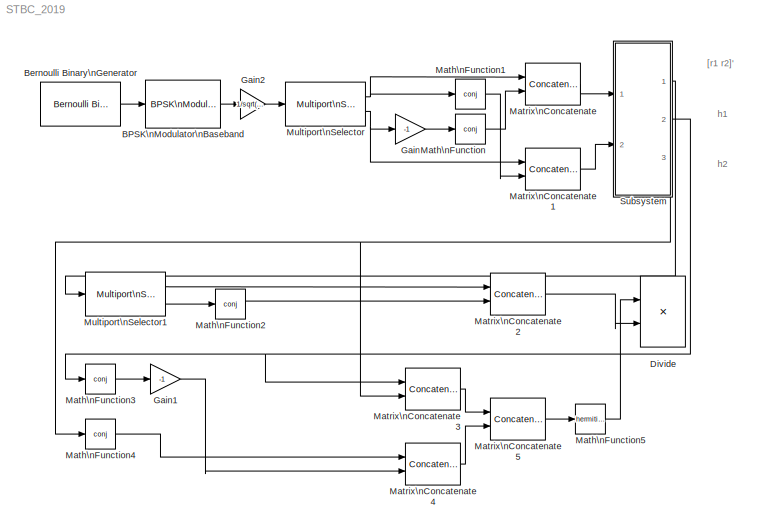
MODEL STBC_2019
KIND model
BLOCK [Reference] BPSK\nModulator\nBaseband  REF=commdigbbndpm3/BPSK\nModulator\nBaseband
  DialogController = commDDGCreate
  DialogControllerArgs = DataTag0
  FunctionWithSeparateData = off
  GeneratePreprocessorConditionals = off
  Ph = 0
  Ports = [1, 1]
  RTWMemSecDataConstants = Inherit from model
  RTWMemSecDataInternal = Inherit from model
  RTWMemSecDataParameters = Inherit from model
  RTWMemSecFuncExecute = Inherit from model
  RTWMemSecFuncInitTerm = Inherit from model
  SID = 2
  ShowPortLabels = FromPortIcon
  SourceBlock = commdigbbndpm3/BPSK\nModulator\nBaseband
  SourceType = BPSK Modulator Baseband
  SystemSampleTime = -1
  outDtype = double
  outFracLen = 15
  outFracLenMode = Best precision
  outUDDataType = sfix(16)
  outWordLen = 16
BLOCK [Reference] Bernoulli Binary\nGenerator  REF=commrandsrc2/Bernoulli Binary\nGenerator
  DialogController = commDDGCreate
  DialogControllerArgs = DataTag1
  FunctionWithSeparateData = off
  GeneratePreprocessorConditionals = off
  P = 0.5
  Ports = [0, 1]
  RTWMemSecDataConstants = Inherit from model
  RTWMemSecDataInternal = Inherit from model
  RTWMemSecDataParameters = Inherit from model
  RTWMemSecFuncExecute = Inherit from model
  RTWMemSecFuncInitTerm = Inherit from model
  SID = 1
  ShowPortLabels = FromPortIcon
  SourceBlock = commrandsrc2/Bernoulli Binary\nGenerator
  SourceType = Bernoulli Binary Generator
  SystemSampleTime = -1
  Ts = 1e-6
  frameBased = on
  orient = off
  outDataType = double
  sampPerFrame = 2
  seed = 61
BLOCK [Product] Divide
  InputSameDT = off
  Inputs = **
  Multiplication = Matrix(*)
  OutDataTypeStr = Inherit: Inherit via internal rule
  Ports = [2, 1]
  RndMeth = Floor
  SID = 33
  SaturateOnIntegerOverflow = off
BLOCK [Gain] Gain
  Gain = -1
  OutDataTypeStr = Inherit: Inherit via internal rule
  ParamDataTypeStr = Inherit: Inherit via internal rule
  SID = 5
  SaturateOnIntegerOverflow = off
BLOCK [Gain] Gain1
  Gain = -1
  OutDataTypeStr = Inherit: Inherit via internal rule
  ParamDataTypeStr = Inherit: Inherit via internal rule
  SID = 27
  SaturateOnIntegerOverflow = off
BLOCK [Gain] Gain2
  Gain = 1/sqrt(2)
  OutDataTypeStr = Inherit: Inherit via internal rule
  ParamDataTypeStr = Inherit: Inherit via internal rule
  SID = 37
  SaturateOnIntegerOverflow = off
BLOCK [Math] Math\nFunction
  Operator = conj
  Ports = [1, 1]
  SID = 4
BLOCK [Math] Math\nFunction1
  Operator = conj
  Ports = [1, 1]
  SID = 6
BLOCK [Math] Math\nFunction2
  Operator = conj
  Ports = [1, 1]
  SID = 23
BLOCK [Math] Math\nFunction3
  Operator = conj
  Ports = [1, 1]
  SID = 25
BLOCK [Math] Math\nFunction4
  Operator = conj
  Ports = [1, 1]
  SID = 26
BLOCK [Math] Math\nFunction5
  Operator = hermitian
  Ports = [1, 1]
  SID = 32
BLOCK [Concatenate] Matrix\nConcatenate
  Mode = Multidimensional array
  Ports = [2, 1]
  SID = 7
BLOCK [Concatenate] Matrix\nConcatenate1
  Mode = Multidimensional array
  Ports = [2, 1]
  SID = 9
BLOCK [Concatenate] Matrix\nConcatenate2
  Mode = Multidimensional array
  Ports = [2, 1]
  SID = 24
BLOCK [Concatenate] Matrix\nConcatenate3
  ConcatenateDimension = 2
  Mode = Multidimensional array
  Ports = [2, 1]
  SID = 28
BLOCK [Concatenate] Matrix\nConcatenate4
  ConcatenateDimension = 2
  Mode = Multidimensional array
  Ports = [2, 1]
  SID = 29
BLOCK [Concatenate] Matrix\nConcatenate5
  Mode = Multidimensional array
  Ports = [2, 1]
  SID = 31
BLOCK [Reference] Multiport\nSelector  REF=dspindex/Multiport\nSelector
  Ports = [1, 2]
  SID = 3
  SourceBlock = dspindex/Multiport\nSelector
  SourceType = Multiport Selector
  idxCellArray = {1,2}
  idxErrMode = Clip Index
  rowsOrCols = Rows
BLOCK [Reference] Multiport\nSelector1  REF=dspindex/Multiport\nSelector
  Ports = [1, 2]
  SID = 22
  SourceBlock = dspindex/Multiport\nSelector
  SourceType = Multiport Selector
  idxCellArray = {1,2}
  idxErrMode = Clip Index
  rowsOrCols = Rows
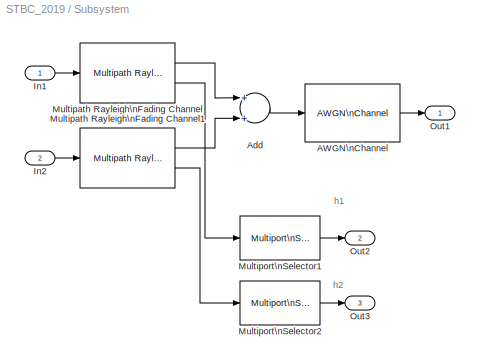
BLOCK [SubSystem] Subsystem
  FunctionWithSeparateData = off
  MaskHideContents = off
  MinAlgLoopOccurrences = off
  Opaque = off
  Ports = [2, 3]
  PropExecContextOutsideSubsystem = off
  RTWSystemCode = Auto
  RequestExecContextInheritance = off
  SID = 16
BLOCK [Reference] Subsystem/AWGN\nChannel  REF=commchan3/AWGN\nChannel
  EbNodB = 10
  EsNodB = 10
  FunctionWithSeparateData = off
  GeneratePreprocessorConditionals = off
  InputProcessing = Columns as channels (frame based)
  Ports = [1, 1]
  Ps = 1
  RTWMemSecDataConstants = Inherit from model
  RTWMemSecDataInternal = Inherit from model
  RTWMemSecDataParameters = Inherit from model
  RTWMemSecFuncExecute = Inherit from model
  RTWMemSecFuncInitTerm = Inherit from model
  SID = 13
  SNRdB = 10
  ShowPortLabels = FromPortIcon
  SourceBlock = commchan3/AWGN\nChannel
  SourceType = AWGN Channel
  SystemSampleTime = -1
  Tsym = 1e-6
  UserData = DataTag2
  UserDataPersistent = on
  bitsPerSym = 1
  noiseMode = Signal to noise ratio  (Eb/No)
  seed = 67
  variance = 1
BLOCK [Sum] Subsystem/Add
  InputSameDT = off
  OutDataTypeStr = Inherit: Inherit via internal rule
  Ports = [2, 1]
  SID = 12
  SaturateOnIntegerOverflow = off
BLOCK [Inport] Subsystem/In1
  IconDisplay = Port number
  SID = 17
BLOCK [Inport] Subsystem/In2
  IconDisplay = Port number
  Port = 2
  SID = 19
BLOCK [Reference] Subsystem/Multipath Rayleigh\nFading Channel  REF=commchan3/Multipath Rayleigh\nFading Channel
  FunctionWithSeparateData = off
  GeneratePreprocessorConditionals = off
  Ports = [1, 2]
  RTWMemSecDataConstants = Inherit from model
  RTWMemSecDataInternal = Inherit from model
  RTWMemSecDataParameters = Inherit from model
  RTWMemSecFuncExecute = Inherit from model
  RTWMemSecFuncInitTerm = Inherit from model
  SID = 10
  ShowPortLabels = FromPortIcon
  SourceBlock = commchan3/Multipath Rayleigh\nFading Channel
  SourceType = Multipath Rayleigh Fading Channel
  SystemSampleTime = -1
  avgPathGaindB = 0
  centerFreqGaussian1 = 0.0
  centerFreqGaussian2 = 0.0
  coeffBell = 9
  coeffRounded = [1 -1.72 0.785]
  dopplerSpectrum = doppler.jakes
  enableProbe = 0
  freqMinMaxAJakes = [0 1]
  freqMinMaxRJakes = [0 1]
  gainGaussian1 = 0.5
  gainGaussian2 = 0.5
  maxDopplerShift = 40
  normalizePathGains = on
  openVisAtStart = off
  outDelay = off
  outPathGains = on
  pathDelays = 0
  seed = 73
  sigmaGaussian = 1/sqrt(2)
  sigmaGaussian1 = 1/sqrt(2)
  sigmaGaussian2 = 1/sqrt(2)
  spectrumType = Jakes
BLOCK [Reference] Subsystem/Multipath Rayleigh\nFading Channel1  REF=commchan3/Multipath Rayleigh\nFading Channel
  FunctionWithSeparateData = off
  GeneratePreprocessorConditionals = off
  Ports = [1, 2]
  RTWMemSecDataConstants = Inherit from model
  RTWMemSecDataInternal = Inherit from model
  RTWMemSecDataParameters = Inherit from model
  RTWMemSecFuncExecute = Inherit from model
  RTWMemSecFuncInitTerm = Inherit from model
  SID = 11
  ShowPortLabels = FromPortIcon
  SourceBlock = commchan3/Multipath Rayleigh\nFading Channel
  SourceType = Multipath Rayleigh Fading Channel
  SystemSampleTime = -1
  avgPathGaindB = 0
  centerFreqGaussian1 = 0.0
  centerFreqGaussian2 = 0.0
  coeffBell = 9
  coeffRounded = [1 -1.72 0.785]
  dopplerSpectrum = doppler.jakes
  enableProbe = 0
  freqMinMaxAJakes = [0 1]
  freqMinMaxRJakes = [0 1]
  gainGaussian1 = 0.5
  gainGaussian2 = 0.5
  maxDopplerShift = 40
  normalizePathGains = on
  openVisAtStart = off
  outDelay = off
  outPathGains = on
  pathDelays = 0
  seed = 731
  sigmaGaussian = 1/sqrt(2)
  sigmaGaussian1 = 1/sqrt(2)
  sigmaGaussian2 = 1/sqrt(2)
  spectrumType = Jakes
BLOCK [Reference] Subsystem/Multiport\nSelector1  REF=dspindex/Multiport\nSelector
  Ports = [1, 1]
  SID = 14
  SourceBlock = dspindex/Multiport\nSelector
  SourceType = Multiport Selector
  idxCellArray = {1}
  idxErrMode = Clip Index
  rowsOrCols = Rows
BLOCK [Reference] Subsystem/Multiport\nSelector2  REF=dspindex/Multiport\nSelector
  Ports = [1, 1]
  SID = 15
  SourceBlock = dspindex/Multiport\nSelector
  SourceType = Multiport Selector
  idxCellArray = {1}
  idxErrMode = Clip Index
  rowsOrCols = Rows
BLOCK [Outport] Subsystem/Out1
  IconDisplay = Port number
  SID = 18
BLOCK [Outport] Subsystem/Out2
  IconDisplay = Port number
  Port = 2
  SID = 20
BLOCK [Outport] Subsystem/Out3
  IconDisplay = Port number
  Port = 3
  SID = 21
ANNOTATION (root): [r1 r2]'
ANNOTATION (root): h1
ANNOTATION (root): h2
ANNOTATION Subsystem: h1
ANNOTATION Subsystem: h2
LINE BPSK\nModulator\nBaseband:1 -> Gain2:1
LINE Bernoulli Binary\nGenerator:1 -> BPSK\nModulator\nBaseband:1
LINE Gain1:1 -> Matrix\nConcatenate4:2
LINE Gain2:1 -> Multiport\nSelector:1
LINE Gain:1 -> Math\nFunction:1
LINE Math\nFunction1:1 -> Matrix\nConcatenate1:2
LINE Math\nFunction2:1 -> Matrix\nConcatenate2:2
LINE Math\nFunction3:1 -> Gain1:1
LINE Math\nFunction4:1 -> Matrix\nConcatenate4:1
LINE Math\nFunction5:1 -> Divide:1
LINE Math\nFunction:1 -> Matrix\nConcatenate:2
LINE Matrix\nConcatenate1:1 -> Subsystem:2
LINE Matrix\nConcatenate2:1 -> Divide:2
LINE Matrix\nConcatenate3:1 -> Matrix\nConcatenate5:1
LINE Matrix\nConcatenate4:1 -> Matrix\nConcatenate5:2
LINE Matrix\nConcatenate5:1 -> Math\nFunction5:1
LINE Matrix\nConcatenate:1 -> Subsystem:1
LINE Multiport\nSelector1:1 -> Matrix\nConcatenate2:1
LINE Multiport\nSelector1:2 -> Math\nFunction2:1
NET Multiport\nSelector:1 -> Math\nFunction1:1, Matrix\nConcatenate:1
NET Multiport\nSelector:2 -> Gain:1, Matrix\nConcatenate1:1
LINE Subsystem/AWGN\nChannel:1 -> Subsystem/Out1:1
LINE Subsystem/Add:1 -> Subsystem/AWGN\nChannel:1
LINE Subsystem/In1:1 -> Subsystem/Multipath Rayleigh\nFading Channel:1
LINE Subsystem/In2:1 -> Subsystem/Multipath Rayleigh\nFading Channel1:1
LINE Subsystem/Multipath Rayleigh\nFading Channel1:1 -> Subsystem/Add:2
LINE Subsystem/Multipath Rayleigh\nFading Channel1:2 -> Subsystem/Multiport\nSelector2:1
LINE Subsystem/Multipath Rayleigh\nFading Channel:1 -> Subsystem/Add:1
LINE Subsystem/Multipath Rayleigh\nFading Channel:2 -> Subsystem/Multiport\nSelector1:1
LINE Subsystem/Multiport\nSelector1:1 -> Subsystem/Out2:1
LINE Subsystem/Multiport\nSelector2:1 -> Subsystem/Out3:1
LINE Subsystem:1 -> Multiport\nSelector1:1
NET Subsystem:2 -> Math\nFunction3:1, Matrix\nConcatenate3:1
NET Subsystem:3 -> Math\nFunction4:1, Matrix\nConcatenate3:2
note: NET lines group one-source signal fan-out (src -> all destinations, sorted); 1:1 wires keep LINE
